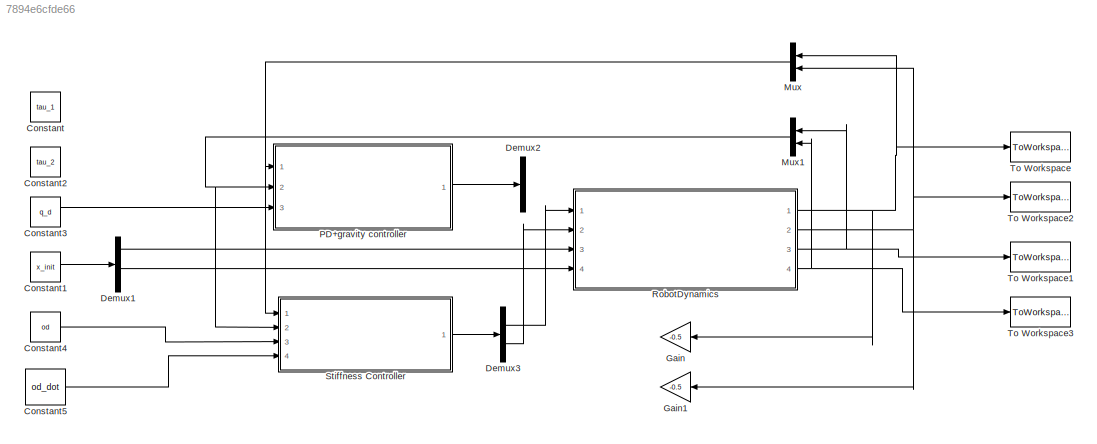
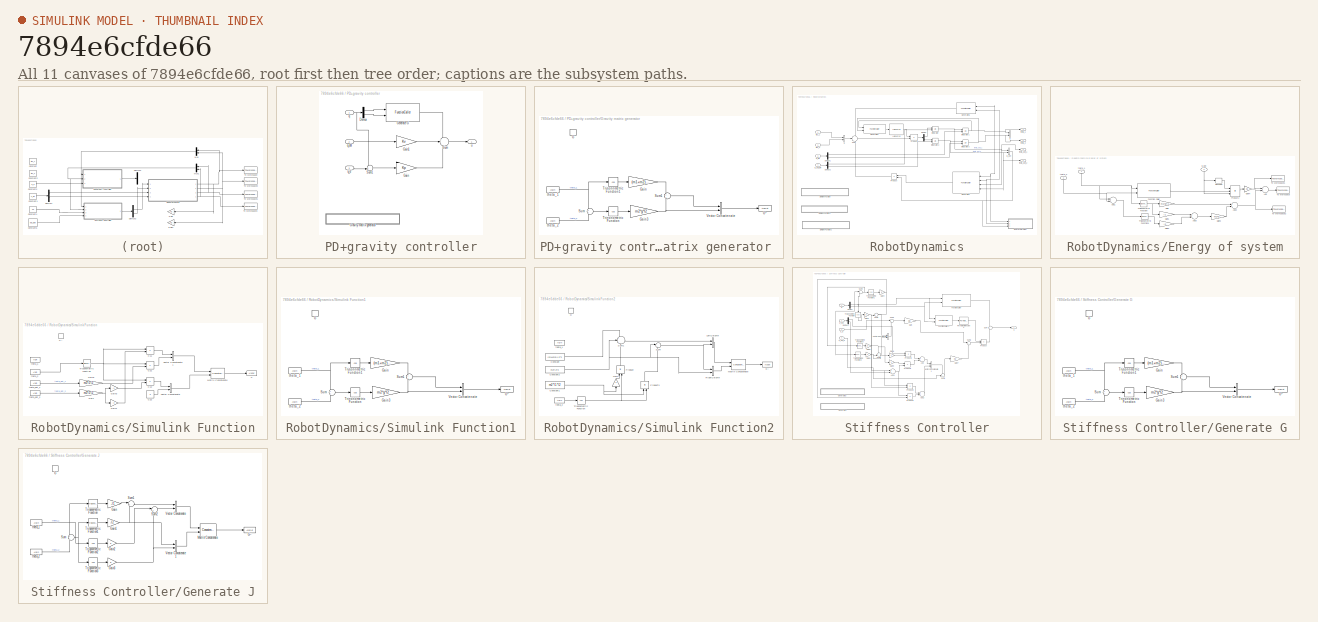
[diagram: thumbnail index - all 11 canvases of the model, root first then tree order]
MODEL slx_7894e6cfde66
KIND model
CONFIG AbsTol = auto
CONFIG FixedStep = 0.001
CONFIG MaxStep = auto
CONFIG MinStep = auto
CONFIG RelTol = 1e-3
CONFIG SampleTimeConstraint = Unconstrained
CONFIG Solver = FixedStepAuto
CONFIG SolverMode = Auto
CONFIG SolverName = FixedStepAuto
CONFIG StartTime = 0.0
CONFIG StopTime = 15
BLOCK [Constant] Constant
  Value = tau_1
BLOCK [Constant] Constant1
  Value = x_init
BLOCK [Constant] Constant2
  Value = tau_2
BLOCK [Constant] Constant3
  Value = q_d
BLOCK [Constant] Constant4
  Value = od
BLOCK [Constant] Constant5
  Value = od_dot
BLOCK [Demux] Demux1
  DisplayOption = bar
  Outputs = 2
  Ports = [1, 2]
BLOCK [Demux] Demux2
  DisplayOption = bar
  Outputs = 2
  Ports = [1, 2]
BLOCK [Demux] Demux3
  DisplayOption = bar
  Outputs = 2
  Ports = [1, 2]
BLOCK [Gain] Gain
  Gain = -0.5
  OutDataTypeStr = Inherit: Inherit via internal rule
  ParamDataTypeStr = Inherit: Inherit via internal rule
  SaturateOnIntegerOverflow = off
BLOCK [Gain] Gain1
  Gain = -0.5
  OutDataTypeStr = Inherit: Inherit via internal rule
  ParamDataTypeStr = Inherit: Inherit via internal rule
  SaturateOnIntegerOverflow = off
BLOCK [Mux] Mux
  DisplayOption = bar
  Inputs = 2
  Ports = [2, 1]
BLOCK [Mux] Mux1
  DisplayOption = bar
  Inputs = 2
  Ports = [2, 1]
BLOCK [SubSystem] PD+gravity controller
  Ports = [3, 1]
  RequestExecContextInheritance = off
  Variant = off
BLOCK [Demux] PD+gravity controller/Demux
  DisplayOption = bar
  Outputs = 2
  Ports = [1, 2]
BLOCK [Gain] PD+gravity controller/Gain
  Gain = Kp
  Multiplication = Matrix(K*u)
  OutDataTypeStr = Inherit: Inherit via internal rule
  ParamDataTypeStr = Inherit: Inherit via internal rule
  SaturateOnIntegerOverflow = off
BLOCK [Gain] PD+gravity controller/Gain1
  Gain = Kv
  Multiplication = Matrix(K*u)
  OutDataTypeStr = Inherit: Inherit via internal rule
  ParamDataTypeStr = Inherit: Inherit via internal rule
  SaturateOnIntegerOverflow = off
BLOCK [FunctionCaller] PD+gravity controller/Generate G
  FunctionPrototype = G = G(theta_1,theta_2)
  Ports = [2, 1]
BLOCK [SubSystem] PD+gravity controller/Gravity matrix generator 
  Ports = [0, 0, 0, 1]
  RequestExecContextInheritance = off
  TreatAsAtomicUnit = on
  Variant = off
BLOCK [TriggerPort] PD+gravity controller/Gravity matrix generator /G
  FunctionName = G
  IsSimulinkFunction = on
  Ports = []
  StatesWhenEnabling = held
  TriggerType = function-call
  VariantControl = Variant
BLOCK [Gain] PD+gravity controller/Gravity matrix generator /Gain
  Gain = (m1+m2)*g*l1
  OutDataTypeStr = Inherit: Inherit via internal rule
  ParamDataTypeStr = Inherit: Inherit via internal rule
  SaturateOnIntegerOverflow = off
BLOCK [Gain] PD+gravity controller/Gravity matrix generator /Gain3
  Gain = m2*g*l2
  OutDataTypeStr = Inherit: Inherit via internal rule
  ParamDataTypeStr = Inherit: Inherit via internal rule
  SaturateOnIntegerOverflow = off
BLOCK [ArgOut] PD+gravity controller/Gravity matrix generator /G~
  ArgumentName = G
  DisableCoverage = on
  PortDimensions = [2 1]
BLOCK [Sum] PD+gravity controller/Gravity matrix generator /Sum
  IconShape = round
  InputSameDT = off
  Inputs = +|+
  OutDataTypeStr = Inherit: Inherit via internal rule
  Ports = [2, 1]
  SaturateOnIntegerOverflow = off
BLOCK [Sum] PD+gravity controller/Gravity matrix generator /Sum1
  IconShape = round
  InputSameDT = off
  Inputs = +|+
  OutDataTypeStr = Inherit: Inherit via internal rule
  Ports = [2, 1]
  SaturateOnIntegerOverflow = off
BLOCK [Trigonometry] PD+gravity controller/Gravity matrix generator /Trigonometric Function
  Operator = cos
  Ports = [1, 1]
BLOCK [Trigonometry] PD+gravity controller/Gravity matrix generator /Trigonometric Function1
  Operator = cos
  Ports = [1, 1]
BLOCK [Concatenate] PD+gravity controller/Gravity matrix generator /Vector Concatenate
  Ports = [2, 1]
BLOCK [ArgIn] PD+gravity controller/Gravity matrix generator /theta_1
  ArgumentName = theta_1
  DisableCoverage = on
BLOCK [ArgIn] PD+gravity controller/Gravity matrix generator /theta_2
  ArgumentName = theta_2
  DisableCoverage = on
  Port = 2
BLOCK [Sum] PD+gravity controller/Sum
  IconShape = round
  InputSameDT = off
  Inputs = +|-|+
  OutDataTypeStr = Inherit: Inherit via internal rule
  Ports = [3, 1]
  SaturateOnIntegerOverflow = off
BLOCK [Sum] PD+gravity controller/Sum1
  IconShape = round
  InputSameDT = off
  Inputs = -+|
  OutDataTypeStr = Inherit: Inherit via internal rule
  Ports = [2, 1]
  SaturateOnIntegerOverflow = off
BLOCK [Inport] PD+gravity controller/q
  IconDisplay = Port number
BLOCK [Inport] PD+gravity controller/q_d
  IconDisplay = Port number
  Port = 3
BLOCK [Inport] PD+gravity controller/q_dot 
  IconDisplay = Port number
  Port = 2
BLOCK [Outport] PD+gravity controller/u 
  IconDisplay = Port number
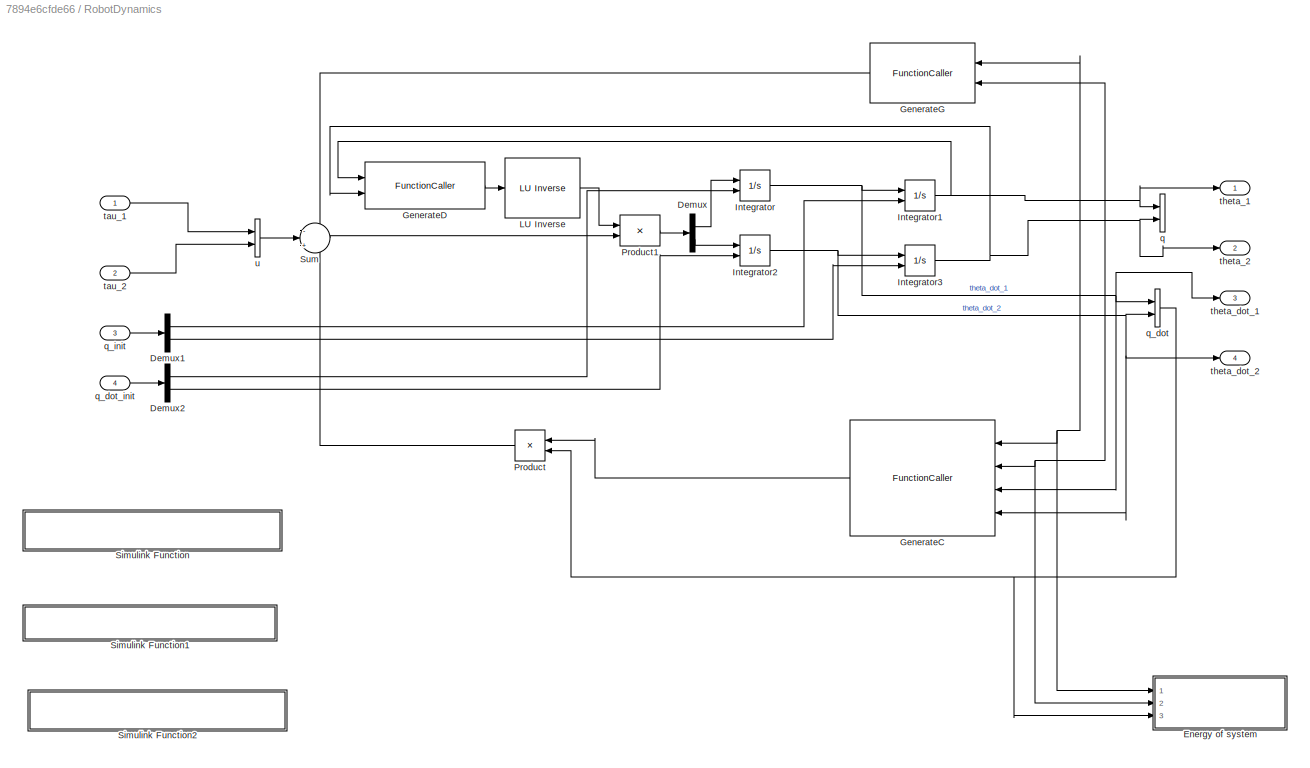
BLOCK [SubSystem] RobotDynamics
  Ports = [4, 4]
  RequestExecContextInheritance = off
  Variant = off
BLOCK [Reference] RobotDynamics/ LU Inverse  REF=dspinverses/ LU Inverse
  Ports = [1, 1]
  SourceBlock = dspinverses/ LU Inverse
  SourceType = LU Inverse
BLOCK [Demux] RobotDynamics/Demux
  DisplayOption = bar
  Outputs = 2
  Ports = [1, 2]
BLOCK [Demux] RobotDynamics/Demux1
  DisplayOption = bar
  Outputs = 2
  Ports = [1, 2]
BLOCK [Demux] RobotDynamics/Demux2
  DisplayOption = bar
  Outputs = 2
  Ports = [1, 2]
BLOCK [SubSystem] RobotDynamics/Energy of system
  Ports = [3]
  RequestExecContextInheritance = off
  Variant = off
BLOCK [Sum] RobotDynamics/Energy of system/Add
  InputSameDT = off
  OutDataTypeStr = Inherit: Inherit via internal rule
  Ports = [2, 1]
  SaturateOnIntegerOverflow = off
BLOCK [Sum] RobotDynamics/Energy of system/Add1
  InputSameDT = off
  OutDataTypeStr = Inherit: Inherit via internal rule
  Ports = [2, 1]
  SaturateOnIntegerOverflow = off
BLOCK [Sum] RobotDynamics/Energy of system/Add2
  InputSameDT = off
  OutDataTypeStr = Inherit: Inherit via internal rule
  Ports = [2, 1]
  SaturateOnIntegerOverflow = off
BLOCK [Sum] RobotDynamics/Energy of system/Add3
  InputSameDT = off
  OutDataTypeStr = Inherit: Inherit via internal rule
  Ports = [2, 1]
  SaturateOnIntegerOverflow = off
BLOCK [FunctionCaller] RobotDynamics/Energy of system/Function Caller
  FunctionPrototype = D = D(theta_1,theta_2)
  Ports = [2, 1]
BLOCK [Gain] RobotDynamics/Energy of system/Gain
  Gain = m1*g*l1
  OutDataTypeStr = Inherit: Inherit via internal rule
  ParamDataTypeStr = Inherit: Inherit via internal rule
  SaturateOnIntegerOverflow = off
BLOCK [Gain] RobotDynamics/Energy of system/Gain1
  Gain = l1
  OutDataTypeStr = Inherit: Inherit via internal rule
  ParamDataTypeStr = Inherit: Inherit via internal rule
  SaturateOnIntegerOverflow = off
BLOCK [Gain] RobotDynamics/Energy of system/Gain2
  Gain = l2
  OutDataTypeStr = Inherit: Inherit via internal rule
  ParamDataTypeStr = Inherit: Inherit via internal rule
  SaturateOnIntegerOverflow = off
BLOCK [Gain] RobotDynamics/Energy of system/Gain3
  Gain = m2*g
  OutDataTypeStr = Inherit: Inherit via internal rule
  ParamDataTypeStr = Inherit: Inherit via internal rule
  SaturateOnIntegerOverflow = off
BLOCK [Gain] RobotDynamics/Energy of system/Gain4
  Gain = 0.5
  OutDataTypeStr = Inherit: Inherit via internal rule
  ParamDataTypeStr = Inherit: Inherit via internal rule
  SaturateOnIntegerOverflow = off
BLOCK [Product] RobotDynamics/Energy of system/Product2
  InputSameDT = off
  Inputs = 3
  Multiplication = Matrix(*)
  OutDataTypeStr = Inherit: Inherit via internal rule
  Ports = [3, 1]
  RndMeth = Floor
  SaturateOnIntegerOverflow = off
BLOCK [Reshape] RobotDynamics/Energy of system/Reshape
  OutputDimensionality = Row vector (2-D)
  Ports = [1, 1]
BLOCK [ToWorkspace] RobotDynamics/Energy of system/To Workspace
  FixptAsFi = on
  MaxDataPoints = inf
  Ports = [1]
  SampleTime = -1
  Save2DSignal = 3-D array (concatenate along third dimension)
  SaveFormat = Timeseries
  VariableName = energy
BLOCK [ToWorkspace] RobotDynamics/Energy of system/To Workspace1
  FixptAsFi = on
  MaxDataPoints = inf
  Ports = [1]
  SampleTime = -1
  Save2DSignal = 3-D array (concatenate along third dimension)
  SaveFormat = Timeseries
  VariableName = T
BLOCK [ToWorkspace] RobotDynamics/Energy of system/To Workspace2
  FixptAsFi = on
  MaxDataPoints = inf
  Ports = [1]
  SampleTime = -1
  Save2DSignal = 3-D array (concatenate along third dimension)
  SaveFormat = Timeseries
  VariableName = V
BLOCK [Trigonometry] RobotDynamics/Energy of system/Trigonometric Function
  Ports = [1, 1]
BLOCK [Trigonometry] RobotDynamics/Energy of system/Trigonometric Function1
  Ports = [1, 1]
BLOCK [Inport] RobotDynamics/Energy of system/q_dot
  IconDisplay = Port number
  Port = 3
BLOCK [Inport] RobotDynamics/Energy of system/theta_1
  IconDisplay = Port number
BLOCK [Inport] RobotDynamics/Energy of system/theta_2
  IconDisplay = Port number
  Port = 2
BLOCK [FunctionCaller] RobotDynamics/GenerateC
  FunctionPrototype = C = C(theta_1,theta_2,theta_dot_1,theta_dot_2)
  Ports = [4, 1]
BLOCK [FunctionCaller] RobotDynamics/GenerateD
  FunctionPrototype = D = D(theta_1,theta_2)
  Ports = [2, 1]
BLOCK [FunctionCaller] RobotDynamics/GenerateG
  FunctionPrototype = G = G(theta_1,theta_2)
  Ports = [2, 1]
BLOCK [Integrator] RobotDynamics/Integrator
  InitialConditionSource = external
  Ports = [2, 1]
BLOCK [Integrator] RobotDynamics/Integrator1
  InitialConditionSource = external
  Ports = [2, 1]
BLOCK [Integrator] RobotDynamics/Integrator2
  InitialCondition = x(
  InitialConditionSource = external
  Ports = [2, 1]
BLOCK [Integrator] RobotDynamics/Integrator3
  InitialConditionSource = external
  Ports = [2, 1]
BLOCK [Product] RobotDynamics/Product
  InputSameDT = off
  Multiplication = Matrix(*)
  OutDataTypeStr = Inherit: Inherit via internal rule
  Ports = [2, 1]
  RndMeth = Floor
  SaturateOnIntegerOverflow = off
BLOCK [Product] RobotDynamics/Product1
  InputSameDT = off
  Multiplication = Matrix(*)
  OutDataTypeStr = Inherit: Inherit via internal rule
  Ports = [2, 1]
  RndMeth = Floor
  SaturateOnIntegerOverflow = off
BLOCK [SubSystem] RobotDynamics/Simulink Function
  Ports = [0, 0, 0, 1]
  RequestExecContextInheritance = off
  TreatAsAtomicUnit = on
  Variant = off
BLOCK [ArgOut] RobotDynamics/Simulink Function/C
  ArgumentName = C
  DisableCoverage = on
  PortDimensions = [2 2]
BLOCK [Product] RobotDynamics/Simulink Function/C11
  InputSameDT = off
  OutDataTypeStr = Inherit: Inherit via internal rule
  Ports = [2, 1]
  RndMeth = Floor
  SaturateOnIntegerOverflow = off
BLOCK [Product] RobotDynamics/Simulink Function/C12
  InputSameDT = off
  OutDataTypeStr = Inherit: Inherit via internal rule
  Ports = [2, 1]
  RndMeth = Floor
  SaturateOnIntegerOverflow = off
BLOCK [Product] RobotDynamics/Simulink Function/C21
  InputSameDT = off
  OutDataTypeStr = Inherit: Inherit via internal rule
  Ports = [2, 1]
  RndMeth = Floor
  SaturateOnIntegerOverflow = off
BLOCK [Constant] RobotDynamics/Simulink Function/C22
  Value = 0
BLOCK [TriggerPort] RobotDynamics/Simulink Function/C~
  FunctionName = C
  IsSimulinkFunction = on
  Ports = []
  StatesWhenEnabling = held
  TriggerType = function-call
  VariantControl = Variant
BLOCK [Gain] RobotDynamics/Simulink Function/Gain
  Gain = m2*l1*l2
  OutDataTypeStr = Inherit: Inherit via internal rule
  ParamDataTypeStr = Inherit: Inherit via internal rule
  SaturateOnIntegerOverflow = off
BLOCK [Gain] RobotDynamics/Simulink Function/Gain1
  Gain = -2
  OutDataTypeStr = Inherit: Inherit via internal rule
  ParamDataTypeStr = Inherit: Inherit via internal rule
  SaturateOnIntegerOverflow = off
BLOCK [Gain] RobotDynamics/Simulink Function/Gain2
  Gain = m2*l1*l2
  OutDataTypeStr = Inherit: Inherit via internal rule
  ParamDataTypeStr = Inherit: Inherit via internal rule
  SaturateOnIntegerOverflow = off
BLOCK [Gain] RobotDynamics/Simulink Function/Gain3
  Gain = -1
  OutDataTypeStr = Inherit: Inherit via internal rule
  ParamDataTypeStr = Inherit: Inherit via internal rule
  SaturateOnIntegerOverflow = off
BLOCK [Concatenate] RobotDynamics/Simulink Function/Matrix Concatenate
  ConcatenateDimension = 2
  Mode = Multidimensional array
  Ports = [2, 1]
BLOCK [Trigonometry] RobotDynamics/Simulink Function/Trigonometric Function
  Ports = [1, 1]
BLOCK [Concatenate] RobotDynamics/Simulink Function/Vector Concatenate
  Ports = [2, 1]
BLOCK [Concatenate] RobotDynamics/Simulink Function/Vector Concatenate1
  Ports = [2, 1]
BLOCK [ArgIn] RobotDynamics/Simulink Function/theta_1
  ArgumentName = theta_1
  DisableCoverage = on
BLOCK [ArgIn] RobotDynamics/Simulink Function/theta_2
  ArgumentName = theta_2
  DisableCoverage = on
  Port = 2
BLOCK [ArgIn] RobotDynamics/Simulink Function/theta_dot_1
  ArgumentName = theta_dot_1
  DisableCoverage = on
  Port = 3
BLOCK [ArgIn] RobotDynamics/Simulink Function/theta_dot_2
  ArgumentName = theta_dot_2
  DisableCoverage = on
  Port = 4
BLOCK [SubSystem] RobotDynamics/Simulink Function1
  Ports = [0, 0, 0, 1]
  RequestExecContextInheritance = off
  TreatAsAtomicUnit = on
  Variant = off
BLOCK [TriggerPort] RobotDynamics/Simulink Function1/G
  FunctionName = G
  IsSimulinkFunction = on
  Ports = []
  StatesWhenEnabling = held
  TriggerType = function-call
  VariantControl = Variant
BLOCK [Gain] RobotDynamics/Simulink Function1/Gain
  Gain = (m1+m2)*g*l1
  OutDataTypeStr = Inherit: Inherit via internal rule
  ParamDataTypeStr = Inherit: Inherit via internal rule
  SaturateOnIntegerOverflow = off
BLOCK [Gain] RobotDynamics/Simulink Function1/Gain3
  Gain = m2*g*l2
  OutDataTypeStr = Inherit: Inherit via internal rule
  ParamDataTypeStr = Inherit: Inherit via internal rule
  SaturateOnIntegerOverflow = off
BLOCK [ArgOut] RobotDynamics/Simulink Function1/G~
  ArgumentName = G
  DisableCoverage = on
  PortDimensions = [2 1]
BLOCK [Sum] RobotDynamics/Simulink Function1/Sum
  IconShape = round
  InputSameDT = off
  Inputs = +|+
  OutDataTypeStr = Inherit: Inherit via internal rule
  Ports = [2, 1]
  SaturateOnIntegerOverflow = off
BLOCK [Sum] RobotDynamics/Simulink Function1/Sum1
  IconShape = round
  InputSameDT = off
  Inputs = +|+
  OutDataTypeStr = Inherit: Inherit via internal rule
  Ports = [2, 1]
  SaturateOnIntegerOverflow = off
BLOCK [Trigonometry] RobotDynamics/Simulink Function1/Trigonometric Function
  Operator = cos
  Ports = [1, 1]
BLOCK [Trigonometry] RobotDynamics/Simulink Function1/Trigonometric Function1
  Operator = cos
  Ports = [1, 1]
BLOCK [Concatenate] RobotDynamics/Simulink Function1/Vector Concatenate
  Ports = [2, 1]
BLOCK [ArgIn] RobotDynamics/Simulink Function1/theta_1
  ArgumentName = theta_1
  DisableCoverage = on
BLOCK [ArgIn] RobotDynamics/Simulink Function1/theta_2
  ArgumentName = theta_2
  DisableCoverage = on
  Port = 2
BLOCK [SubSystem] RobotDynamics/Simulink Function2
  Ports = [0, 0, 0, 1]
  RequestExecContextInheritance = off
  TreatAsAtomicUnit = on
  Variant = off
BLOCK [Constant] RobotDynamics/Simulink Function2/Constant
  Value = (m1+m2)*l1^2
BLOCK [Constant] RobotDynamics/Simulink Function2/Constant1
  Value = m2*l1*l2
BLOCK [Constant] RobotDynamics/Simulink Function2/Constant2
  Value = m2*l2^2
BLOCK [TriggerPort] RobotDynamics/Simulink Function2/D
  FunctionName = D
  IsSimulinkFunction = on
  Ports = []
  StatesWhenEnabling = held
  TriggerType = function-call
  VariantControl = Variant
BLOCK [ArgOut] RobotDynamics/Simulink Function2/D~
  ArgumentName = D
  DisableCoverage = on
  PortDimensions = [2 2]
BLOCK [Gain] RobotDynamics/Simulink Function2/Gain
  Gain = 2
  OutDataTypeStr = Inherit: Inherit via internal rule
  ParamDataTypeStr = Inherit: Inherit via internal rule
  SaturateOnIntegerOverflow = off
BLOCK [Concatenate] RobotDynamics/Simulink Function2/LeftColumn
  Ports = [2, 1]
BLOCK [Concatenate] RobotDynamics/Simulink Function2/Matrix Concatenate
  ConcatenateDimension = 2
  Mode = Multidimensional array
  Ports = [2, 1]
BLOCK [Product] RobotDynamics/Simulink Function2/Product
  InputSameDT = off
  OutDataTypeStr = Inherit: Inherit via internal rule
  Ports = [2, 1]
  RndMeth = Floor
  SaturateOnIntegerOverflow = off
BLOCK [Product] RobotDynamics/Simulink Function2/Product3
  InputSameDT = off
  OutDataTypeStr = Inherit: Inherit via internal rule
  Ports = [2, 1]
  RndMeth = Floor
  SaturateOnIntegerOverflow = off
BLOCK [Concatenate] RobotDynamics/Simulink Function2/RightColumn
  Ports = [2, 1]
BLOCK [Sum] RobotDynamics/Simulink Function2/Sum
  IconShape = round
  InputSameDT = off
  Inputs = |++
  OutDataTypeStr = Inherit: Inherit via internal rule
  Ports = [2, 1]
  SaturateOnIntegerOverflow = off
BLOCK [Sum] RobotDynamics/Simulink Function2/Sum1
  IconShape = round
  InputSameDT = off
  Inputs = +|+|+
  OutDataTypeStr = Inherit: Inherit via internal rule
  Ports = [3, 1]
  SaturateOnIntegerOverflow = off
BLOCK [Trigonometry] RobotDynamics/Simulink Function2/Trigonometric Function
  Operator = cos
  Ports = [1, 1]
BLOCK [ArgIn] RobotDynamics/Simulink Function2/theta_1
  ArgumentName = theta_1
  DisableCoverage = on
BLOCK [ArgIn] RobotDynamics/Simulink Function2/theta_2
  ArgumentName = theta_2
  DisableCoverage = on
  Port = 2
BLOCK [Sum] RobotDynamics/Sum
  IconShape = round
  InputSameDT = off
  Inputs = -|+|-
  OutDataTypeStr = Inherit: Inherit via internal rule
  Ports = [3, 1]
  SaturateOnIntegerOverflow = off
BLOCK [Concatenate] RobotDynamics/q
  Ports = [2, 1]
BLOCK [Concatenate] RobotDynamics/q_dot
  Ports = [2, 1]
BLOCK [Inport] RobotDynamics/q_dot_init
  IconDisplay = Port number
  Port = 4
BLOCK [Inport] RobotDynamics/q_init
  IconDisplay = Port number
  Port = 3
BLOCK [Inport] RobotDynamics/tau_1
  IconDisplay = Port number
BLOCK [Inport] RobotDynamics/tau_2
  IconDisplay = Port number
  Port = 2
BLOCK [Outport] RobotDynamics/theta_1
  IconDisplay = Port number
BLOCK [Outport] RobotDynamics/theta_2
  IconDisplay = Port number
  Port = 2
BLOCK [Outport] RobotDynamics/theta_dot_1
  IconDisplay = Port number
  Port = 3
BLOCK [Outport] RobotDynamics/theta_dot_2
  IconDisplay = Port number
  Port = 4
BLOCK [Concatenate] RobotDynamics/u
  Ports = [2, 1]
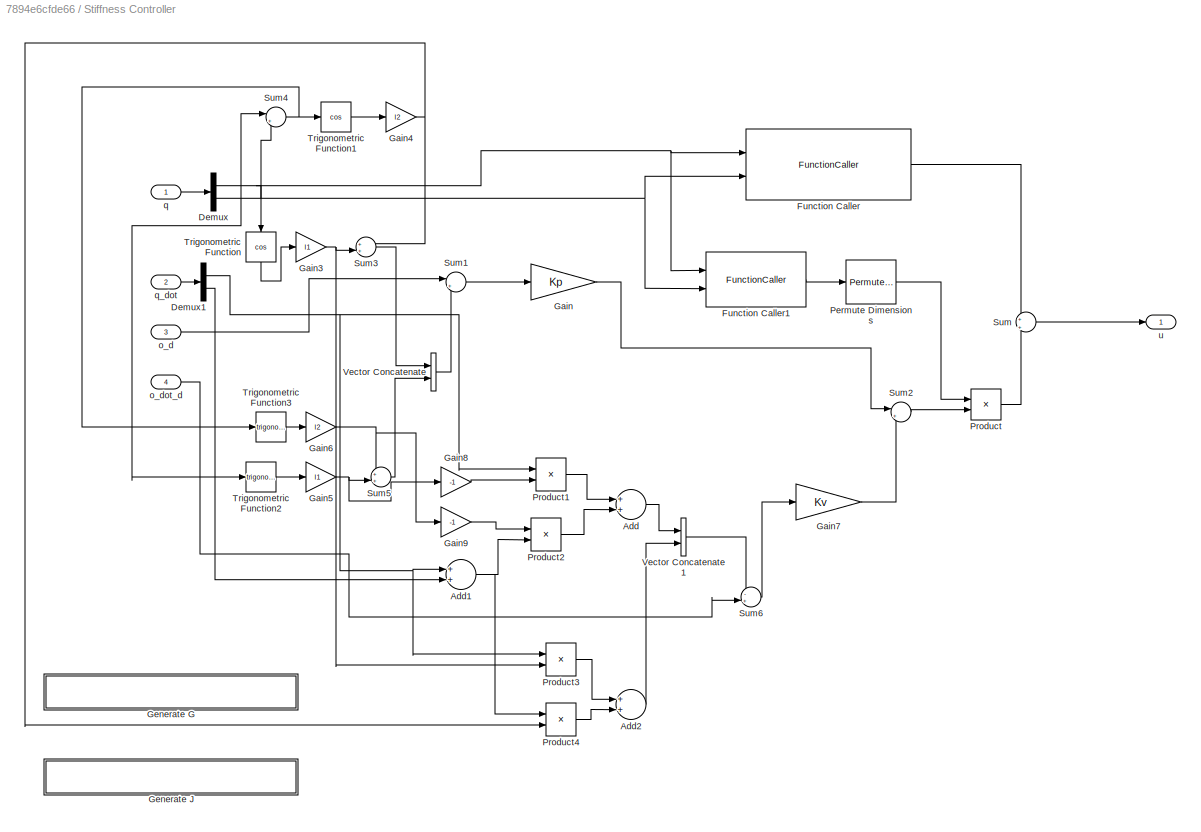
BLOCK [SubSystem] Stiffness Controller
  Ports = [4, 1]
  RequestExecContextInheritance = off
  Variant = off
BLOCK [Sum] Stiffness Controller/Add
  InputSameDT = off
  OutDataTypeStr = Inherit: Inherit via internal rule
  Ports = [2, 1]
  SaturateOnIntegerOverflow = off
BLOCK [Sum] Stiffness Controller/Add1
  InputSameDT = off
  OutDataTypeStr = Inherit: Inherit via internal rule
  Ports = [2, 1]
  SaturateOnIntegerOverflow = off
BLOCK [Sum] Stiffness Controller/Add2
  InputSameDT = off
  OutDataTypeStr = Inherit: Inherit via internal rule
  Ports = [2, 1]
  SaturateOnIntegerOverflow = off
BLOCK [Demux] Stiffness Controller/Demux
  DisplayOption = bar
  Outputs = 2
  Ports = [1, 2]
BLOCK [Demux] Stiffness Controller/Demux1
  DisplayOption = bar
  Outputs = 2
  Ports = [1, 2]
BLOCK [FunctionCaller] Stiffness Controller/Function Caller
  FunctionPrototype = G = G(theta_1,theta_2)
  Ports = [2, 1]
BLOCK [FunctionCaller] Stiffness Controller/Function Caller1
  FunctionPrototype = J = J(theta_1,theta_2)
  Ports = [2, 1]
BLOCK [Gain] Stiffness Controller/Gain
  Gain = Kp
  Multiplication = Matrix(K*u)
  OutDataTypeStr = Inherit: Inherit via internal rule
  ParamDataTypeStr = Inherit: Inherit via internal rule
  SaturateOnIntegerOverflow = off
BLOCK [Gain] Stiffness Controller/Gain3
  Gain = l1
  OutDataTypeStr = Inherit: Inherit via internal rule
  ParamDataTypeStr = Inherit: Inherit via internal rule
  SaturateOnIntegerOverflow = off
BLOCK [Gain] Stiffness Controller/Gain4
  Gain = l2
  OutDataTypeStr = Inherit: Inherit via internal rule
  ParamDataTypeStr = Inherit: Inherit via internal rule
  SaturateOnIntegerOverflow = off
BLOCK [Gain] Stiffness Controller/Gain5
  Gain = l1
  OutDataTypeStr = Inherit: Inherit via internal rule
  ParamDataTypeStr = Inherit: Inherit via internal rule
  SaturateOnIntegerOverflow = off
BLOCK [Gain] Stiffness Controller/Gain6
  Gain = l2
  OutDataTypeStr = Inherit: Inherit via internal rule
  ParamDataTypeStr = Inherit: Inherit via internal rule
  SaturateOnIntegerOverflow = off
BLOCK [Gain] Stiffness Controller/Gain7
  Gain = Kv
  Multiplication = Matrix(K*u)
  OutDataTypeStr = Inherit: Inherit via internal rule
  ParamDataTypeStr = Inherit: Inherit via internal rule
  SaturateOnIntegerOverflow = off
BLOCK [Gain] Stiffness Controller/Gain8
  Gain = -1
  OutDataTypeStr = Inherit: Inherit via internal rule
  ParamDataTypeStr = Inherit: Inherit via internal rule
  SaturateOnIntegerOverflow = off
BLOCK [Gain] Stiffness Controller/Gain9
  Gain = -1
  OutDataTypeStr = Inherit: Inherit via internal rule
  ParamDataTypeStr = Inherit: Inherit via internal rule
  SaturateOnIntegerOverflow = off
BLOCK [SubSystem] Stiffness Controller/Generate G
  Ports = [0, 0, 0, 1]
  RequestExecContextInheritance = off
  TreatAsAtomicUnit = on
  Variant = off
BLOCK [TriggerPort] Stiffness Controller/Generate G/G
  FunctionName = G
  IsSimulinkFunction = on
  Ports = []
  StatesWhenEnabling = held
  TriggerType = function-call
  VariantControl = Variant
BLOCK [Gain] Stiffness Controller/Generate G/Gain
  Gain = (m1+m2)*g*l1
  OutDataTypeStr = Inherit: Inherit via internal rule
  ParamDataTypeStr = Inherit: Inherit via internal rule
  SaturateOnIntegerOverflow = off
BLOCK [Gain] Stiffness Controller/Generate G/Gain3
  Gain = m2*g*l2
  OutDataTypeStr = Inherit: Inherit via internal rule
  ParamDataTypeStr = Inherit: Inherit via internal rule
  SaturateOnIntegerOverflow = off
BLOCK [ArgOut] Stiffness Controller/Generate G/G~
  ArgumentName = G
  DisableCoverage = on
  PortDimensions = [2 1]
BLOCK [Sum] Stiffness Controller/Generate G/Sum
  IconShape = round
  InputSameDT = off
  Inputs = +|+
  OutDataTypeStr = Inherit: Inherit via internal rule
  Ports = [2, 1]
  SaturateOnIntegerOverflow = off
BLOCK [Sum] Stiffness Controller/Generate G/Sum1
  IconShape = round
  InputSameDT = off
  Inputs = +|+
  OutDataTypeStr = Inherit: Inherit via internal rule
  Ports = [2, 1]
  SaturateOnIntegerOverflow = off
BLOCK [Trigonometry] Stiffness Controller/Generate G/Trigonometric Function
  Operator = cos
  Ports = [1, 1]
BLOCK [Trigonometry] Stiffness Controller/Generate G/Trigonometric Function1
  Operator = cos
  Ports = [1, 1]
BLOCK [Concatenate] Stiffness Controller/Generate G/Vector Concatenate
  Ports = [2, 1]
BLOCK [ArgIn] Stiffness Controller/Generate G/theta_1
  ArgumentName = theta_1
  DisableCoverage = on
BLOCK [ArgIn] Stiffness Controller/Generate G/theta_2
  ArgumentName = theta_2
  DisableCoverage = on
  Port = 2
BLOCK [SubSystem] Stiffness Controller/Generate J
  Ports = [0, 0, 0, 1]
  RequestExecContextInheritance = off
  TreatAsAtomicUnit = on
  Variant = off
BLOCK [TriggerPort] Stiffness Controller/Generate J/G
  FunctionName = J
  IsSimulinkFunction = on
  Ports = []
  StatesWhenEnabling = held
  TriggerType = function-call
  VariantControl = Variant
BLOCK [Gain] Stiffness Controller/Generate J/Gain
  Gain = -l1
  OutDataTypeStr = Inherit: Inherit via internal rule
  ParamDataTypeStr = Inherit: Inherit via internal rule
  SaturateOnIntegerOverflow = off
BLOCK [Gain] Stiffness Controller/Generate J/Gain1
  Gain = -l2
  OutDataTypeStr = Inherit: Inherit via internal rule
  ParamDataTypeStr = Inherit: Inherit via internal rule
  SaturateOnIntegerOverflow = off
BLOCK [Gain] Stiffness Controller/Generate J/Gain2
  Gain = l1
  OutDataTypeStr = Inherit: Inherit via internal rule
  ParamDataTypeStr = Inherit: Inherit via internal rule
  SaturateOnIntegerOverflow = off
BLOCK [Gain] Stiffness Controller/Generate J/Gain3
  Gain = l2
  OutDataTypeStr = Inherit: Inherit via internal rule
  ParamDataTypeStr = Inherit: Inherit via internal rule
  SaturateOnIntegerOverflow = off
BLOCK [ArgOut] Stiffness Controller/Generate J/G~
  ArgumentName = J
  DisableCoverage = on
  PortDimensions = [2 2]
BLOCK [Concatenate] Stiffness Controller/Generate J/Matrix Concatenate
  ConcatenateDimension = 2
  Mode = Multidimensional array
  Ports = [2, 1]
BLOCK [Sum] Stiffness Controller/Generate J/Sum
  IconShape = round
  InputSameDT = off
  Inputs = +|+
  OutDataTypeStr = Inherit: Inherit via internal rule
  Ports = [2, 1]
  SaturateOnIntegerOverflow = off
BLOCK [Sum] Stiffness Controller/Generate J/Sum1
  IconShape = round
  InputSameDT = off
  Inputs = |++
  OutDataTypeStr = Inherit: Inherit via internal rule
  Ports = [2, 1]
  SaturateOnIntegerOverflow = off
BLOCK [Sum] Stiffness Controller/Generate J/Sum2
  IconShape = round
  InputSameDT = off
  Inputs = |++
  OutDataTypeStr = Inherit: Inherit via internal rule
  Ports = [2, 1]
  SaturateOnIntegerOverflow = off
BLOCK [Trigonometry] Stiffness Controller/Generate J/Trigonometric Function
  Ports = [1, 1]
BLOCK [Trigonometry] Stiffness Controller/Generate J/Trigonometric Function1
  Ports = [1, 1]
BLOCK [Trigonometry] Stiffness Controller/Generate J/Trigonometric Function2
  Operator = cos
  Ports = [1, 1]
BLOCK [Trigonometry] Stiffness Controller/Generate J/Trigonometric Function3
  Operator = cos
  Ports = [1, 1]
BLOCK [Concatenate] Stiffness Controller/Generate J/Vector Concatenate
  Ports = [2, 1]
BLOCK [Concatenate] Stiffness Controller/Generate J/Vector Concatenate1
  Ports = [2, 1]
BLOCK [ArgIn] Stiffness Controller/Generate J/theta_1
  ArgumentName = theta_1
  DisableCoverage = on
BLOCK [ArgIn] Stiffness Controller/Generate J/theta_2
  ArgumentName = theta_2
  DisableCoverage = on
  Port = 2
BLOCK [PermuteDimensions] Stiffness Controller/Permute Dimensions
BLOCK [Product] Stiffness Controller/Product
  InputSameDT = off
  Multiplication = Matrix(*)
  OutDataTypeStr = Inherit: Inherit via internal rule
  Ports = [2, 1]
  RndMeth = Floor
  SaturateOnIntegerOverflow = off
BLOCK [Product] Stiffness Controller/Product1
  InputSameDT = off
  OutDataTypeStr = Inherit: Inherit via internal rule
  Ports = [2, 1]
  RndMeth = Floor
  SaturateOnIntegerOverflow = off
BLOCK [Product] Stiffness Controller/Product2
  InputSameDT = off
  OutDataTypeStr = Inherit: Inherit via internal rule
  Ports = [2, 1]
  RndMeth = Floor
  SaturateOnIntegerOverflow = off
BLOCK [Product] Stiffness Controller/Product3
  InputSameDT = off
  OutDataTypeStr = Inherit: Inherit via internal rule
  Ports = [2, 1]
  RndMeth = Floor
  SaturateOnIntegerOverflow = off
BLOCK [Product] Stiffness Controller/Product4
  InputSameDT = off
  OutDataTypeStr = Inherit: Inherit via internal rule
  Ports = [2, 1]
  RndMeth = Floor
  SaturateOnIntegerOverflow = off
BLOCK [Sum] Stiffness Controller/Sum
  IconShape = round
  InputSameDT = off
  Inputs = +|+
  OutDataTypeStr = Inherit: Inherit via internal rule
  Ports = [2, 1]
  SaturateOnIntegerOverflow = off
BLOCK [Sum] Stiffness Controller/Sum1
  IconShape = round
  InputSameDT = off
  Inputs = |+-
  OutDataTypeStr = Inherit: Inherit via internal rule
  Ports = [2, 1]
  SaturateOnIntegerOverflow = off
BLOCK [Sum] Stiffness Controller/Sum2
  IconShape = round
  InputSameDT = off
  Inputs = |++
  OutDataTypeStr = Inherit: Inherit via internal rule
  Ports = [2, 1]
  SaturateOnIntegerOverflow = off
BLOCK [Sum] Stiffness Controller/Sum3
  IconShape = round
  InputSameDT = off
  Inputs = ++|
  OutDataTypeStr = Inherit: Inherit via internal rule
  Ports = [2, 1]
  SaturateOnIntegerOverflow = off
BLOCK [Sum] Stiffness Controller/Sum4
  IconShape = round
  InputSameDT = off
  Inputs = |++
  OutDataTypeStr = Inherit: Inherit via internal rule
  Ports = [2, 1]
  SaturateOnIntegerOverflow = off
BLOCK [Sum] Stiffness Controller/Sum5
  IconShape = round
  InputSameDT = off
  Inputs = ++|
  OutDataTypeStr = Inherit: Inherit via internal rule
  Ports = [2, 1]
  SaturateOnIntegerOverflow = off
BLOCK [Sum] Stiffness Controller/Sum6
  IconShape = round
  InputSameDT = off
  Inputs = -+|
  OutDataTypeStr = Inherit: Inherit via internal rule
  Ports = [2, 1]
  SaturateOnIntegerOverflow = off
BLOCK [Trigonometry] Stiffness Controller/Trigonometric Function
  Operator = cos
  Ports = [1, 1]
BLOCK [Trigonometry] Stiffness Controller/Trigonometric Function1
  Operator = cos
  Ports = [1, 1]
BLOCK [Trigonometry] Stiffness Controller/Trigonometric Function2
  Ports = [1, 1]
BLOCK [Trigonometry] Stiffness Controller/Trigonometric Function3
  Ports = [1, 1]
BLOCK [Concatenate] Stiffness Controller/Vector Concatenate
  Ports = [2, 1]
BLOCK [Concatenate] Stiffness Controller/Vector Concatenate1
  Ports = [2, 1]
BLOCK [Inport] Stiffness Controller/o_d 
  IconDisplay = Port number
  Port = 3
BLOCK [Inport] Stiffness Controller/o_dot_d
  IconDisplay = Port number
  Port = 4
BLOCK [Inport] Stiffness Controller/q
  IconDisplay = Port number
BLOCK [Inport] Stiffness Controller/q_dot
  IconDisplay = Port number
  Port = 2
BLOCK [Outport] Stiffness Controller/u 
  IconDisplay = Port number
BLOCK [ToWorkspace] To Workspace
  FixptAsFi = on
  MaxDataPoints = inf
  Ports = [1]
  SampleTime = -1
  Save2DSignal = 3-D array (concatenate along third dimension)
  SaveFormat = Timeseries
  VariableName = theta_1
BLOCK [ToWorkspace] To Workspace1
  FixptAsFi = on
  MaxDataPoints = inf
  Ports = [1]
  SampleTime = -1
  Save2DSignal = 3-D array (concatenate along third dimension)
  SaveFormat = Timeseries
  VariableName = theta_dot_1
BLOCK [ToWorkspace] To Workspace2
  FixptAsFi = on
  MaxDataPoints = inf
  Ports = [1]
  SampleTime = -1
  Save2DSignal = 3-D array (concatenate along third dimension)
  SaveFormat = Timeseries
  VariableName = theta_2
BLOCK [ToWorkspace] To Workspace3
  FixptAsFi = on
  MaxDataPoints = inf
  Ports = [1]
  SampleTime = -1
  Save2DSignal = 3-D array (concatenate along third dimension)
  SaveFormat = Timeseries
  VariableName = theta_dot_2
LINE Constant1:1 -> Demux1:1
LINE Constant3:1 -> PD+gravity controller:3
LINE Constant4:1 -> Stiffness Controller:3
LINE Constant5:1 -> Stiffness Controller:4
LINE Demux1:1 -> RobotDynamics:3
LINE Demux1:2 -> RobotDynamics:4
LINE Demux3:1 -> RobotDynamics:1
LINE Demux3:2 -> RobotDynamics:2
NET Mux1:1 -> PD+gravity controller:2, Stiffness Controller:2
NET Mux:1 -> PD+gravity controller:1, Stiffness Controller:1
LINE PD+gravity controller/Demux:1 -> PD+gravity controller/Generate G:1
LINE PD+gravity controller/Demux:2 -> PD+gravity controller/Generate G:2
LINE PD+gravity controller/Gain1:1 -> PD+gravity controller/Sum:2
LINE PD+gravity controller/Gain:1 -> PD+gravity controller/Sum:3
LINE PD+gravity controller/Generate G:1 -> PD+gravity controller/Sum:1
NET PD+gravity controller/Gravity matrix generator /Gain3:1 -> PD+gravity controller/Gravity matrix generator /Sum1:2, PD+gravity controller/Gravity matrix generator /Vector Concatenate:2
LINE PD+gravity controller/Gravity matrix generator /Gain:1 -> PD+gravity controller/Gravity matrix generator /Sum1:1
LINE PD+gravity controller/Gravity matrix generator /Sum1:1 -> PD+gravity controller/Gravity matrix generator /Vector Concatenate:1
LINE PD+gravity controller/Gravity matrix generator /Sum:1 -> PD+gravity controller/Gravity matrix generator /Trigonometric Function:1
LINE PD+gravity controller/Gravity matrix generator /Trigonometric Function1:1 -> PD+gravity controller/Gravity matrix generator /Gain:1
LINE PD+gravity controller/Gravity matrix generator /Trigonometric Function:1 -> PD+gravity controller/Gravity matrix generator /Gain3:1
LINE PD+gravity controller/Gravity matrix generator /Vector Concatenate:1 -> PD+gravity controller/Gravity matrix generator /G~:1
NET PD+gravity controller/Gravity matrix generator /theta_1:1 -> PD+gravity controller/Gravity matrix generator /Sum:1, PD+gravity controller/Gravity matrix generator /Trigonometric Function1:1
LINE PD+gravity controller/Gravity matrix generator /theta_2:1 -> PD+gravity controller/Gravity matrix generator /Sum:2
LINE PD+gravity controller/Sum1:1 -> PD+gravity controller/Gain:1
LINE PD+gravity controller/Sum:1 -> PD+gravity controller/u :1
NET PD+gravity controller/q:1 -> PD+gravity controller/Demux:1, PD+gravity controller/Sum1:1
LINE PD+gravity controller/q_d:1 -> PD+gravity controller/Sum1:2
LINE PD+gravity controller/q_dot :1 -> PD+gravity controller/Gain1:1
LINE PD+gravity controller:1 -> Demux2:1
LINE RobotDynamics/ LU Inverse:1 -> RobotDynamics/Product1:1
LINE RobotDynamics/Demux1:1 -> RobotDynamics/Integrator1:2
LINE RobotDynamics/Demux1:2 -> RobotDynamics/Integrator3:2
LINE RobotDynamics/Demux2:1 -> RobotDynamics/Integrator:2
LINE RobotDynamics/Demux2:2 -> RobotDynamics/Integrator2:2
LINE RobotDynamics/Demux:1 -> RobotDynamics/Integrator:1
LINE RobotDynamics/Demux:2 -> RobotDynamics/Integrator2:1
LINE RobotDynamics/Energy of system/Add1:1 -> RobotDynamics/Energy of system/Trigonometric Function1:1
NET RobotDynamics/Energy of system/Add2:1 -> RobotDynamics/Energy of system/Add:2, RobotDynamics/Energy of system/To Workspace2:1
LINE RobotDynamics/Energy of system/Add3:1 -> RobotDynamics/Energy of system/Gain3:1
LINE RobotDynamics/Energy of system/Add:1 -> RobotDynamics/Energy of system/To Workspace:1
LINE RobotDynamics/Energy of system/Function Caller:1 -> RobotDynamics/Energy of system/Product2:2
LINE RobotDynamics/Energy of system/Gain1:1 -> RobotDynamics/Energy of system/Add3:1
LINE RobotDynamics/Energy of system/Gain2:1 -> RobotDynamics/Energy of system/Add3:2
LINE RobotDynamics/Energy of system/Gain3:1 -> RobotDynamics/Energy of system/Add2:2
NET RobotDynamics/Energy of system/Gain4:1 -> RobotDynamics/Energy of system/Add:1, RobotDynamics/Energy of system/To Workspace1:1
LINE RobotDynamics/Energy of system/Gain:1 -> RobotDynamics/Energy of system/Add2:1
LINE RobotDynamics/Energy of system/Product2:1 -> RobotDynamics/Energy of system/Gain4:1
LINE RobotDynamics/Energy of system/Reshape:1 -> RobotDynamics/Energy of system/Product2:1
LINE RobotDynamics/Energy of system/Trigonometric Function1:1 -> RobotDynamics/Energy of system/Gain2:1
NET RobotDynamics/Energy of system/Trigonometric Function:1 -> RobotDynamics/Energy of system/Gain1:1, RobotDynamics/Energy of system/Gain:1
NET RobotDynamics/Energy of system/q_dot:1 -> RobotDynamics/Energy of system/Product2:3, RobotDynamics/Energy of system/Reshape:1
NET RobotDynamics/Energy of system/theta_1:1 -> RobotDynamics/Energy of system/Add1:1, RobotDynamics/Energy of system/Function Caller:1, RobotDynamics/Energy of system/Trigonometric Function:1
NET RobotDynamics/Energy of system/theta_2:1 -> RobotDynamics/Energy of system/Add1:2, RobotDynamics/Energy of system/Function Caller:2
LINE RobotDynamics/GenerateC:1 -> RobotDynamics/Product:1
LINE RobotDynamics/GenerateD:1 -> RobotDynamics/ LU Inverse:1
LINE RobotDynamics/GenerateG:1 -> RobotDynamics/Sum:1
NET RobotDynamics/Integrator1:1 -> RobotDynamics/Energy of system:1, RobotDynamics/GenerateC:1, RobotDynamics/GenerateD:1, RobotDynamics/GenerateG:1, RobotDynamics/q:1, RobotDynamics/theta_1:1
NET RobotDynamics/Integrator2:1 -> RobotDynamics/GenerateC:4, RobotDynamics/Integrator3:1, RobotDynamics/q_dot:2, RobotDynamics/theta_dot_2:1
NET RobotDynamics/Integrator3:1 -> RobotDynamics/Energy of system:2, RobotDynamics/GenerateC:2, RobotDynamics/GenerateD:2, RobotDynamics/GenerateG:2, RobotDynamics/q:2, RobotDynamics/theta_2:1
NET RobotDynamics/Integrator:1 -> RobotDynamics/GenerateC:3, RobotDynamics/Integrator1:1, RobotDynamics/q_dot:1, RobotDynamics/theta_dot_1:1
LINE RobotDynamics/Product1:1 -> RobotDynamics/Demux:1
LINE RobotDynamics/Product:1 -> RobotDynamics/Sum:3
LINE RobotDynamics/Simulink Function/C11:1 -> RobotDynamics/Simulink Function/Vector Concatenate1:1
LINE RobotDynamics/Simulink Function/C12:1 -> RobotDynamics/Simulink Function/Vector Concatenate:1
LINE RobotDynamics/Simulink Function/C21:1 -> RobotDynamics/Simulink Function/Vector Concatenate1:2
LINE RobotDynamics/Simulink Function/C22:1 -> RobotDynamics/Simulink Function/Vector Concatenate:2
LINE RobotDynamics/Simulink Function/Gain1:1 -> RobotDynamics/Simulink Function/C11:2
LINE RobotDynamics/Simulink Function/Gain2:1 -> RobotDynamics/Simulink Function/C21:2
LINE RobotDynamics/Simulink Function/Gain3:1 -> RobotDynamics/Simulink Function/C12:2
NET RobotDynamics/Simulink Function/Gain:1 -> RobotDynamics/Simulink Function/Gain1:1, RobotDynamics/Simulink Function/Gain3:1
LINE RobotDynamics/Simulink Function/Matrix Concatenate:1 -> RobotDynamics/Simulink Function/C:1
NET RobotDynamics/Simulink Function/Trigonometric Function:1 -> RobotDynamics/Simulink Function/C11:1, RobotDynamics/Simulink Function/C12:1, RobotDynamics/Simulink Function/C21:1
LINE RobotDynamics/Simulink Function/Vector Concatenate1:1 -> RobotDynamics/Simulink Function/Matrix Concatenate:1
LINE RobotDynamics/Simulink Function/Vector Concatenate:1 -> RobotDynamics/Simulink Function/Matrix Concatenate:2
LINE RobotDynamics/Simulink Function/theta_2:1 -> RobotDynamics/Simulink Function/Trigonometric Function:1
LINE RobotDynamics/Simulink Function/theta_dot_1:1 -> RobotDynamics/Simulink Function/Gain2:1
LINE RobotDynamics/Simulink Function/theta_dot_2:1 -> RobotDynamics/Simulink Function/Gain:1
NET RobotDynamics/Simulink Function1/Gain3:1 -> RobotDynamics/Simulink Function1/Sum1:2, RobotDynamics/Simulink Function1/Vector Concatenate:2
LINE RobotDynamics/Simulink Function1/Gain:1 -> RobotDynamics/Simulink Function1/Sum1:1
LINE RobotDynamics/Simulink Function1/Sum1:1 -> RobotDynamics/Simulink Function1/Vector Concatenate:1
LINE RobotDynamics/Simulink Function1/Sum:1 -> RobotDynamics/Simulink Function1/Trigonometric Function:1
LINE RobotDynamics/Simulink Function1/Trigonometric Function1:1 -> RobotDynamics/Simulink Function1/Gain:1
LINE RobotDynamics/Simulink Function1/Trigonometric Function:1 -> RobotDynamics/Simulink Function1/Gain3:1
LINE RobotDynamics/Simulink Function1/Vector Concatenate:1 -> RobotDynamics/Simulink Function1/G~:1
NET RobotDynamics/Simulink Function1/theta_1:1 -> RobotDynamics/Simulink Function1/Sum:1, RobotDynamics/Simulink Function1/Trigonometric Function1:1
LINE RobotDynamics/Simulink Function1/theta_2:1 -> RobotDynamics/Simulink Function1/Sum:2
NET RobotDynamics/Simulink Function2/Constant1:1 -> RobotDynamics/Simulink Function2/Gain:1, RobotDynamics/Simulink Function2/Product3:1
NET RobotDynamics/Simulink Function2/Constant2:1 -> RobotDynamics/Simulink Function2/RightColumn:2, RobotDynamics/Simulink Function2/Sum1:2, RobotDynamics/Simulink Function2/Sum:1
LINE RobotDynamics/Simulink Function2/Constant:1 -> RobotDynamics/Simulink Function2/Sum1:1
LINE RobotDynamics/Simulink Function2/Gain:1 -> RobotDynamics/Simulink Function2/Product:1
LINE RobotDynamics/Simulink Function2/LeftColumn:1 -> RobotDynamics/Simulink Function2/Matrix Concatenate:1
LINE RobotDynamics/Simulink Function2/Matrix Concatenate:1 -> RobotDynamics/Simulink Function2/D~:1
LINE RobotDynamics/Simulink Function2/Product3:1 -> RobotDynamics/Simulink Function2/Sum:2
LINE RobotDynamics/Simulink Function2/Product:1 -> RobotDynamics/Simulink Function2/Sum1:3
LINE RobotDynamics/Simulink Function2/RightColumn:1 -> RobotDynamics/Simulink Function2/Matrix Concatenate:2
LINE RobotDynamics/Simulink Function2/Sum1:1 -> RobotDynamics/Simulink Function2/LeftColumn:1
NET RobotDynamics/Simulink Function2/Sum:1 -> RobotDynamics/Simulink Function2/LeftColumn:2, RobotDynamics/Simulink Function2/RightColumn:1
NET RobotDynamics/Simulink Function2/Trigonometric Function:1 -> RobotDynamics/Simulink Function2/Product3:2, RobotDynamics/Simulink Function2/Product:2
LINE RobotDynamics/Simulink Function2/theta_2:1 -> RobotDynamics/Simulink Function2/Trigonometric Function:1
LINE RobotDynamics/Sum:1 -> RobotDynamics/Product1:2
NET RobotDynamics/q_dot:1 -> RobotDynamics/Energy of system:3, RobotDynamics/Product:2
LINE RobotDynamics/q_dot_init:1 -> RobotDynamics/Demux2:1
LINE RobotDynamics/q_init:1 -> RobotDynamics/Demux1:1
LINE RobotDynamics/tau_1:1 -> RobotDynamics/u:1
LINE RobotDynamics/tau_2:1 -> RobotDynamics/u:2
LINE RobotDynamics/u:1 -> RobotDynamics/Sum:2
NET RobotDynamics:1 -> Gain:1, Mux:1, To Workspace:1
NET RobotDynamics:2 -> Gain1:1, Mux:2, To Workspace2:1
NET RobotDynamics:3 -> Mux1:1, To Workspace1:1
NET RobotDynamics:4 -> Mux1:2, To Workspace3:1
NET Stiffness Controller/Add1:1 -> Stiffness Controller/Product2:2, Stiffness Controller/Product4:1
LINE Stiffness Controller/Add2:1 -> Stiffness Controller/Vector Concatenate1:2
LINE Stiffness Controller/Add:1 -> Stiffness Controller/Vector Concatenate1:1
NET Stiffness Controller/Demux1:1 -> Stiffness Controller/Add1:1, Stiffness Controller/Product1:1, Stiffness Controller/Product3:1
LINE Stiffness Controller/Demux1:2 -> Stiffness Controller/Add1:2
NET Stiffness Controller/Demux:1 -> Stiffness Controller/Function Caller1:1, Stiffness Controller/Function Caller:1, Stiffness Controller/Sum4:1, Stiffness Controller/Trigonometric Function2:1, Stiffness Controller/Trigonometric Function:1
NET Stiffness Controller/Demux:2 -> Stiffness Controller/Function Caller1:2, Stiffness Controller/Function Caller:2, Stiffness Controller/Sum4:2
LINE Stiffness Controller/Function Caller1:1 -> Stiffness Controller/Permute Dimensions:1
LINE Stiffness Controller/Function Caller:1 -> Stiffness Controller/Sum:1
NET Stiffness Controller/Gain3:1 -> Stiffness Controller/Product3:2, Stiffness Controller/Sum3:2
NET Stiffness Controller/Gain4:1 -> Stiffness Controller/Product4:2, Stiffness Controller/Sum3:1
NET Stiffness Controller/Gain5:1 -> Stiffness Controller/Gain8:1, Stiffness Controller/Sum5:2
NET Stiffness Controller/Gain6:1 -> Stiffness Controller/Gain9:1, Stiffness Controller/Sum5:1
LINE Stiffness Controller/Gain7:1 -> Stiffness Controller/Sum2:2
LINE Stiffness Controller/Gain8:1 -> Stiffness Controller/Product1:2
LINE Stiffness Controller/Gain9:1 -> Stiffness Controller/Product2:1
LINE Stiffness Controller/Gain:1 -> Stiffness Controller/Sum2:1
NET Stiffness Controller/Generate G/Gain3:1 -> Stiffness Controller/Generate G/Sum1:2, Stiffness Controller/Generate G/Vector Concatenate:2
LINE Stiffness Controller/Generate G/Gain:1 -> Stiffness Controller/Generate G/Sum1:1
LINE Stiffness Controller/Generate G/Sum1:1 -> Stiffness Controller/Generate G/Vector Concatenate:1
LINE Stiffness Controller/Generate G/Sum:1 -> Stiffness Controller/Generate G/Trigonometric Function:1
LINE Stiffness Controller/Generate G/Trigonometric Function1:1 -> Stiffness Controller/Generate G/Gain:1
LINE Stiffness Controller/Generate G/Trigonometric Function:1 -> Stiffness Controller/Generate G/Gain3:1
LINE Stiffness Controller/Generate G/Vector Concatenate:1 -> Stiffness Controller/Generate G/G~:1
NET Stiffness Controller/Generate G/theta_1:1 -> Stiffness Controller/Generate G/Sum:1, Stiffness Controller/Generate G/Trigonometric Function1:1
LINE Stiffness Controller/Generate G/theta_2:1 -> Stiffness Controller/Generate G/Sum:2
NET Stiffness Controller/Generate J/Gain1:1 -> Stiffness Controller/Generate J/Sum1:2, Stiffness Controller/Generate J/Vector Concatenate1:1
LINE Stiffness Controller/Generate J/Gain2:1 -> Stiffness Controller/Generate J/Sum2:1
NET Stiffness Controller/Generate J/Gain3:1 -> Stiffness Controller/Generate J/Sum2:2, Stiffness Controller/Generate J/Vector Concatenate1:2
LINE Stiffness Controller/Generate J/Gain:1 -> Stiffness Controller/Generate J/Sum1:1
LINE Stiffness Controller/Generate J/Matrix Concatenate:1 -> Stiffness Controller/Generate J/G~:1
LINE Stiffness Controller/Generate J/Sum1:1 -> Stiffness Controller/Generate J/Vector Concatenate:1
LINE Stiffness Controller/Generate J/Sum2:1 -> Stiffness Controller/Generate J/Vector Concatenate:2
NET Stiffness Controller/Generate J/Sum:1 -> Stiffness Controller/Generate J/Trigonometric Function1:1, Stiffness Controller/Generate J/Trigonometric Function3:1
LINE Stiffness Controller/Generate J/Trigonometric Function1:1 -> Stiffness Controller/Generate J/Gain1:1
LINE Stiffness Controller/Generate J/Trigonometric Function2:1 -> Stiffness Controller/Generate J/Gain2:1
LINE Stiffness Controller/Generate J/Trigonometric Function3:1 -> Stiffness Controller/Generate J/Gain3:1
LINE Stiffness Controller/Generate J/Trigonometric Function:1 -> Stiffness Controller/Generate J/Gain:1
LINE Stiffness Controller/Generate J/Vector Concatenate1:1 -> Stiffness Controller/Generate J/Matrix Concatenate:2
LINE Stiffness Controller/Generate J/Vector Concatenate:1 -> Stiffness Controller/Generate J/Matrix Concatenate:1
NET Stiffness Controller/Generate J/theta_1:1 -> Stiffness Controller/Generate J/Sum:1, Stiffness Controller/Generate J/Trigonometric Function2:1, Stiffness Controller/Generate J/Trigonometric Function:1
LINE Stiffness Controller/Generate J/theta_2:1 -> Stiffness Controller/Generate J/Sum:2
LINE Stiffness Controller/Permute Dimensions:1 -> Stiffness Controller/Product:1
LINE Stiffness Controller/Product1:1 -> Stiffness Controller/Add:1
LINE Stiffness Controller/Product2:1 -> Stiffness Controller/Add:2
LINE Stiffness Controller/Product3:1 -> Stiffness Controller/Add2:1
LINE Stiffness Controller/Product4:1 -> Stiffness Controller/Add2:2
LINE Stiffness Controller/Product:1 -> Stiffness Controller/Sum:2
LINE Stiffness Controller/Sum1:1 -> Stiffness Controller/Gain:1
LINE Stiffness Controller/Sum2:1 -> Stiffness Controller/Product:2
LINE Stiffness Controller/Sum3:1 -> Stiffness Controller/Vector Concatenate:1
NET Stiffness Controller/Sum4:1 -> Stiffness Controller/Trigonometric Function1:1, Stiffness Controller/Trigonometric Function3:1
LINE Stiffness Controller/Sum5:1 -> Stiffness Controller/Vector Concatenate:2
LINE Stiffness Controller/Sum6:1 -> Stiffness Controller/Gain7:1
LINE Stiffness Controller/Sum:1 -> Stiffness Controller/u :1
LINE Stiffness Controller/Trigonometric Function1:1 -> Stiffness Controller/Gain4:1
LINE Stiffness Controller/Trigonometric Function2:1 -> Stiffness Controller/Gain5:1
LINE Stiffness Controller/Trigonometric Function3:1 -> Stiffness Controller/Gain6:1
LINE Stiffness Controller/Trigonometric Function:1 -> Stiffness Controller/Gain3:1
LINE Stiffness Controller/Vector Concatenate1:1 -> Stiffness Controller/Sum6:1
LINE Stiffness Controller/Vector Concatenate:1 -> Stiffness Controller/Sum1:2
LINE Stiffness Controller/o_d :1 -> Stiffness Controller/Sum1:1
LINE Stiffness Controller/o_dot_d:1 -> Stiffness Controller/Sum6:2
LINE Stiffness Controller/q:1 -> Stiffness Controller/Demux:1
LINE Stiffness Controller/q_dot:1 -> Stiffness Controller/Demux1:1
LINE Stiffness Controller:1 -> Demux3:1
note: NET lines group one-source signal fan-out (src -> all destinations, sorted); 1:1 wires keep LINE
